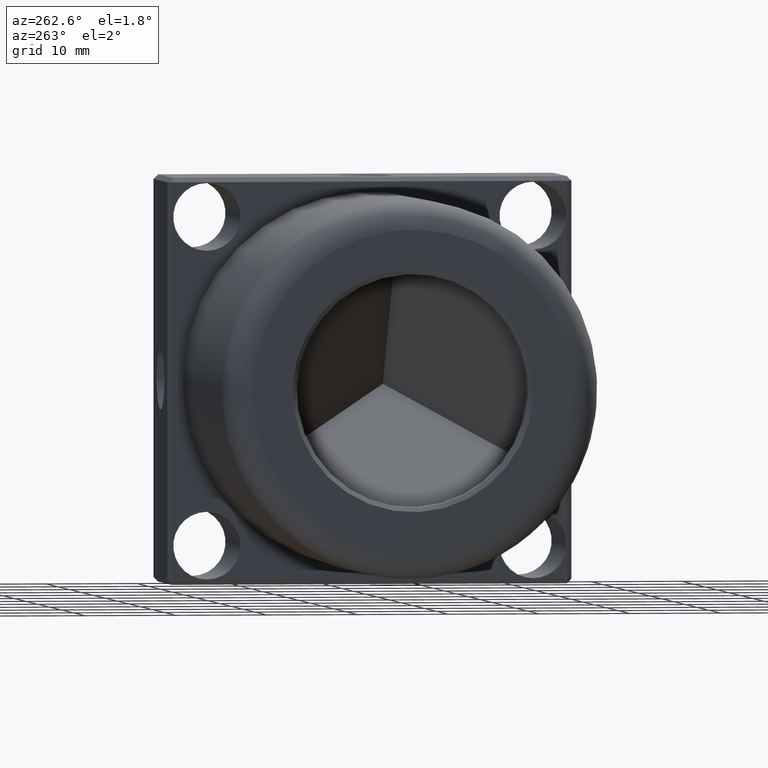
[diagram: clean part render]
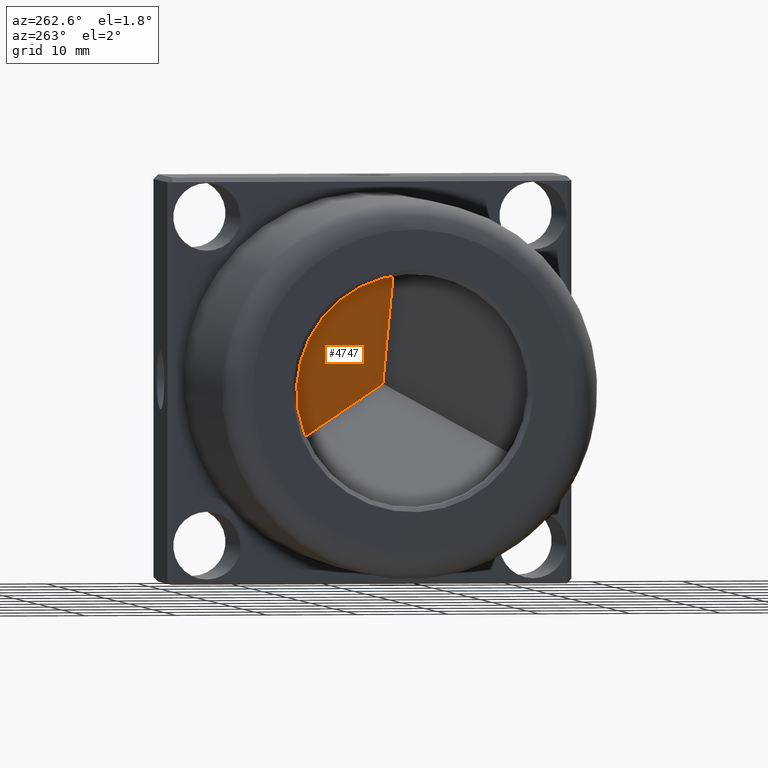
[diagram: same view with one face highlighted and labeled with its STEP entity id]
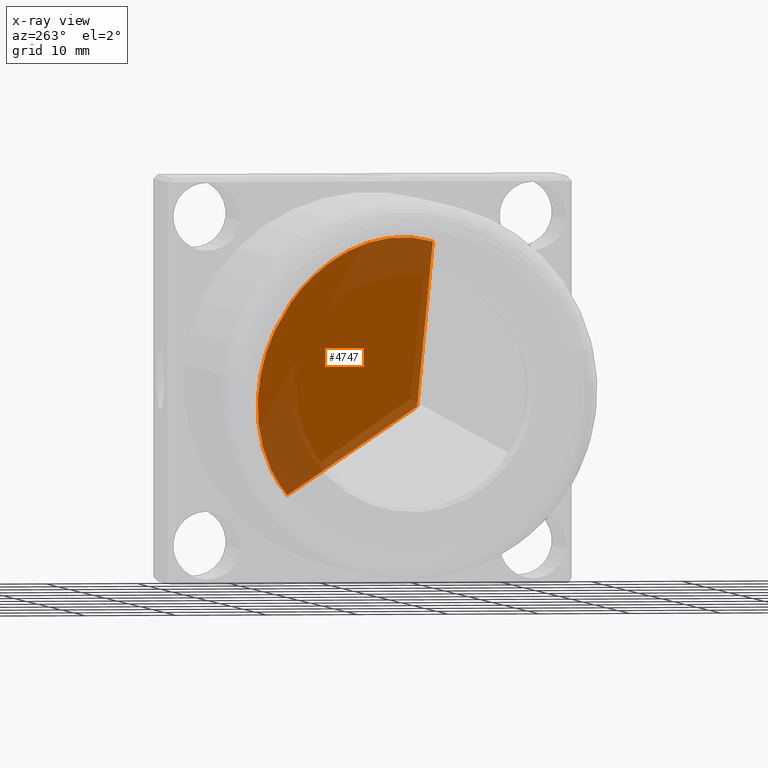
[diagram: x-ray of the same camera — body ghosted, the highlighted face saturated]
A machine part, auxiliary view. The second image highlights one B-rep face of the part: STEP entity #4747.
The next image is the same camera in x-ray: the body ghosted, the highlighted face saturated — about 31% of this face is hidden behind the body in this view.
In plain terms, the highlighted planar face has unit normal (0.5774, 0.7065, 0.4093).
Its self-contained STEP definition (entity closure, byte-faithful):
#15 = VERTEX_POINT ( 'NONE', #457 ) ;
#223 = CARTESIAN_POINT ( 'NONE',  ( 5.137966631858847500, 8.806488449243403200, 13.71032029679431100 ) ) ;
#272 = CARTESIAN_POINT ( 'NONE',  ( 2.800000000000031800, 14.90677957159044800, 6.479288077418353000 ) ) ;
#457 = CARTESIAN_POINT ( 'NONE',  ( 20.43547186097490000, -4.832394583627680300, 15.67343435508996800 ) ) ;
#510 = CARTESIAN_POINT ( 'NONE',  ( 18.15881611365665900, 12.35886425723934700, -10.78626482505638000 ) ) ;
#772 = EDGE_CURVE ( 'NONE', #3099, #15, #4282, .T. ) ;
#1057 = CARTESIAN_POINT ( 'NONE',  ( 33.48648744013495100, -4.804058431562520300, -2.783467128025889800 ) ) ;
#1128 = CARTESIAN_POINT ( 'NONE',  ( 20.43547186097490000, -4.832394583627680300, 15.67343435508996800 ) ) ;
#1165 = CARTESIAN_POINT ( 'NONE',  ( 3.779431664610230200, 10.79894198584966200, 12.18765830023139800 ) ) ;
#1424 = CARTESIAN_POINT ( 'NONE',  ( 3.158455778353338200, 15.51686591505922800, 4.920734979560074300 ) ) ;
#1459 = CARTESIAN_POINT ( 'NONE',  ( 20.43547186097491400, 11.19425520399504500, -11.98737804204984200 ) ) ;
#1474 = EDGE_CURVE ( 'NONE', #8293, #8974, #10611, .T. ) ;
#1594 = EDGE_LOOP ( 'NONE', ( #4907, #8819, #11642, #4559, #4240 ) ) ;
#2097 = CARTESIAN_POINT ( 'NONE',  ( 2.934385310228391200, 12.53570968995772500, 10.38203363566928900 ) ) ;
#2199 = CARTESIAN_POINT ( 'NONE',  ( 33.48648744013495100, -4.804058431562520300, -2.783467128025889800 ) ) ;
#2343 = VERTEX_POINT ( 'NONE', #11644 ) ;
#2353 = CARTESIAN_POINT ( 'NONE',  ( 4.178486060766891400, 16.09690669901336000, 2.480910881861373400 ) ) ;
#2993 = CARTESIAN_POINT ( 'NONE',  ( 15.97391470717108100, -1.556041723803786700, 16.31155999437964600 ) ) ;
#3099 = VERTEX_POINT ( 'NONE', #5623 ) ;
#3291 = CARTESIAN_POINT ( 'NONE',  ( 6.912812473579832000, 16.28529799502549800, -1.700909155520135200 ) ) ;
#3724 = DIRECTION ( 'NONE',  ( -3.885780586188044900E-016, 0.5013289837848087200, -0.8652567538120062900 ) ) ;
#3944 = CARTESIAN_POINT ( 'NONE',  ( 11.87992958371260200, 1.786029889810008000, 16.31781259012617000 ) ) ;
#4082 = CARTESIAN_POINT ( 'NONE',  ( 2.934055865573651700, 15.24067205769123500, 5.713933285134046100 ) ) ;
#4238 = CARTESIAN_POINT ( 'NONE',  ( 10.10978214020002300, 15.56387813718973600, -4.965004348729142900 ) ) ;
#4240 = ORIENTED_EDGE ( 'NONE', *, *, #10227, .T. ) ;
#4282 = LINE ( 'NONE', #2199, #6481 ) ;
#4293 = FACE_OUTER_BOUND ( 'NONE', #1594, .T. ) ;
#4559 = ORIENTED_EDGE ( 'NONE', *, *, #772, .T. ) ;
#4747 = ADVANCED_FACE ( 'NONE', ( #4293 ), #7443, .F. ) ;
#4875 = CARTESIAN_POINT ( 'NONE',  ( 7.694499966086603100, 5.831666666300022500, 15.23874296314833500 ) ) ;
#4907 = ORIENTED_EDGE ( 'NONE', *, *, #1474, .T. ) ;
#5175 = CARTESIAN_POINT ( 'NONE',  ( 12.89108630348596500, 14.64223507005012300, -7.297247613677078500 ) ) ;
#5577 = DIRECTION ( 'NONE',  ( 0.5773502691896267300, 0.7064791811121259300, 0.4093334011802672900 ) ) ;
#5602 = LINE ( 'NONE', #1057, #9274 ) ;
#5611 = VECTOR ( 'NONE', #3724, 1000.000000000000200 ) ;
#5623 = CARTESIAN_POINT ( 'NONE',  ( 33.48648744013495100, -4.804058431562520300, -2.783467128025889800 ) ) ;
#5796 = EDGE_CURVE ( 'NONE', #8974, #2343, #10492, .T. ) ;
#5818 = CARTESIAN_POINT ( 'NONE',  ( 5.702291333457828200, 8.090461384426904000, 14.15017005131718400 ) ) ;
#6120 = CARTESIAN_POINT ( 'NONE',  ( 15.97386278047353500, 13.37732827185811900, -9.462259086757658400 ) ) ;
#6481 = VECTOR ( 'NONE', #8772, 1000.000000000000200 ) ;
#6735 = CARTESIAN_POINT ( 'NONE',  ( 19.28668586738975700, -4.030953614188160100, 15.91052847582012000 ) ) ;
#6783 = CARTESIAN_POINT ( 'NONE',  ( 4.178463275571420600, 10.15791932244123100, 12.73119605618770800 ) ) ;
#7078 = CARTESIAN_POINT ( 'NONE',  ( 19.28599670411767900, 11.79889772885865400, -11.40965231840931100 ) ) ;
#7443 = PLANE ( 'NONE',  #10309 ) ;
#7721 = CARTESIAN_POINT ( 'NONE',  ( 3.158365374114029400, 11.98622782190502000, 11.01448275722618000 ) ) ;
#7970 = CARTESIAN_POINT ( 'NONE',  ( 3.779341260370862300, 15.94424636295463700, 3.307370941524003300 ) ) ;
#8293 = VERTEX_POINT ( 'NONE', #8298 ) ;
#8298 = CARTESIAN_POINT ( 'NONE',  ( 2.800000000000031800, 13.03486438611768400, 9.710075263440700200 ) ) ;
#8392 = CARTESIAN_POINT ( 'NONE',  ( 2.800000000000003800, 13.97082197885409700, 8.094681670429505300 ) ) ;
#8551 = DIRECTION ( 'NONE',  ( 0.5773502691896256200, -0.7077327145956626700, 0.4071622174977944700 ) ) ;
#8635 = CARTESIAN_POINT ( 'NONE',  ( 18.15876418695928200, -3.211099005769385800, 16.08641364235442900 ) ) ;
#8671 = CARTESIAN_POINT ( 'NONE',  ( 2.800000000000031800, 13.03486438611768400, 9.710075263440700200 ) ) ;
#8772 = DIRECTION ( 'NONE',  ( -0.5773502691896248400, -0.001253533483535352000, 0.8164956186780633100 ) ) ;
#8819 = ORIENTED_EDGE ( 'NONE', *, *, #5796, .T. ) ;
#8931 = CARTESIAN_POINT ( 'NONE',  ( 5.617672739611511400, 16.36304894933280000, -0.008352815095894092600 ) ) ;
#8974 = VERTEX_POINT ( 'NONE', #272 ) ;
#9274 = VECTOR ( 'NONE', #8551, 1000.000000000000000 ) ;
#9554 = CARTESIAN_POINT ( 'NONE',  ( 14.91342755295766600, -0.7180237511075332500, 16.36098252572264400 ) ) ;
#9666 = B_SPLINE_CURVE_WITH_KNOTS ( 'NONE', 3,
 ( #1128, #6735, #8635, #2993, #9554, #3944, #10488, #4875, #11435, #5818, #223, #6783, #1165, #7721, #2097, #8671 ),
 .UNSPECIFIED., .F., .F.,
 ( 4, 2, 2, 2, 2, 2, 2, 4 ),
 ( 0.0000000000000000000, 0.1249999999999999400, 0.2499999999999998900, 0.4999999999999997800, 0.6249999999999997800, 0.7499999999999998900, 0.8749999999999998900, 1.000000000000000000 ),
 .UNSPECIFIED. ) ;
#9851 = CARTESIAN_POINT ( 'NONE',  ( 9.258133423476952100, 15.79161434662175800, -4.156839844801285500 ) ) ;
#10227 = EDGE_CURVE ( 'NONE', #15, #8293, #9666, .T. ) ;
#10309 = AXIS2_PLACEMENT_3D ( 'NONE', #11203, #5577, #12137 ) ;
#10488 = CARTESIAN_POINT ( 'NONE',  ( 10.04007938836059200, 3.455305498823999100, 16.03180988569496500 ) ) ;
#10492 = B_SPLINE_CURVE_WITH_KNOTS ( 'NONE', 3,
 ( #11677, #4082, #1424, #7970, #2353, #8931, #3291, #9851, #4238, #10800, #5175, #11717, #6120, #510, #7078, #1459 ),
 .UNSPECIFIED., .F., .F.,
 ( 4, 2, 2, 2, 2, 2, 2, 4 ),
 ( 0.0000000000000000000, 0.1250000000000000600, 0.2500000000000001100, 0.5000000000000001100, 0.6250000000000000000, 0.7500000000000000000, 0.8750000000000000000, 1.000000000000000000 ),
 .UNSPECIFIED. ) ;
#10611 = LINE ( 'NONE', #8392, #5611 ) ;
#10800 = CARTESIAN_POINT ( 'NONE',  ( 11.92346938360839400, 14.99010916728363100, -6.532863175666580700 ) ) ;
#11203 = CARTESIAN_POINT ( 'NONE',  ( 33.48648744013495100, -4.804058431562520300, -2.783467128025889800 ) ) ;
#11435 = CARTESIAN_POINT ( 'NONE',  ( 6.978459571864100900, 6.605586575984994500, 14.91296405211617300 ) ) ;
#11606 = EDGE_CURVE ( 'NONE', #2343, #3099, #5602, .T. ) ;
#11642 = ORIENTED_EDGE ( 'NONE', *, *, #11606, .T. ) ;
#11644 = CARTESIAN_POINT ( 'NONE',  ( 20.43547186097491400, 11.19425520399504500, -11.98737804204984200 ) ) ;
#11677 = CARTESIAN_POINT ( 'NONE',  ( 2.800000000000031800, 14.90677957159044800, 6.479288077418353000 ) ) ;
#11717 = CARTESIAN_POINT ( 'NONE',  ( 14.91343682293266000, 13.83699253144601100, -8.759912340773160700 ) ) ;
#12137 = DIRECTION ( 'NONE',  ( 0.5773502691896250600, 0.001253533483535352000, -0.8164956186780632000 ) ) ;